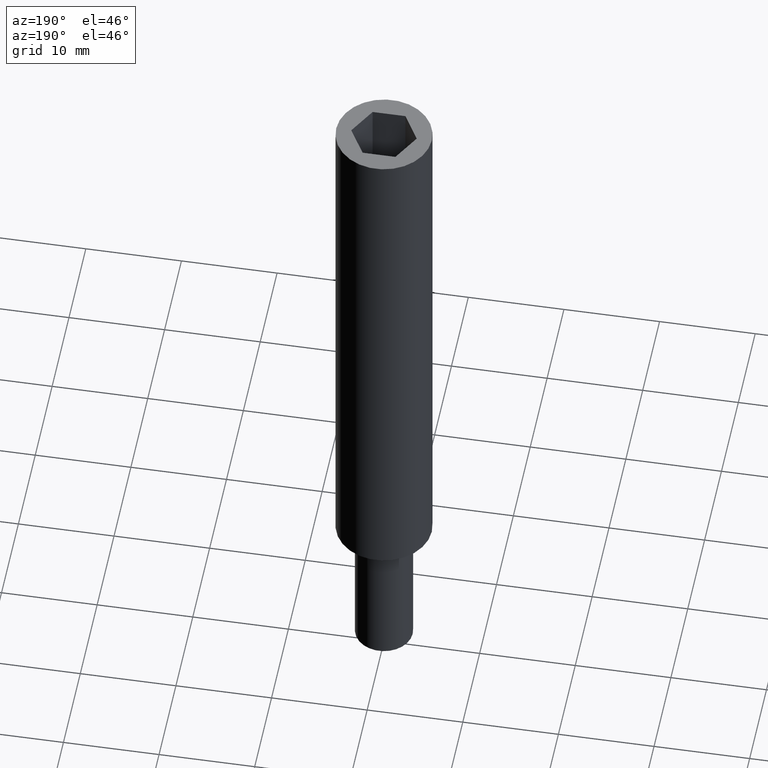
[diagram: clean part render]
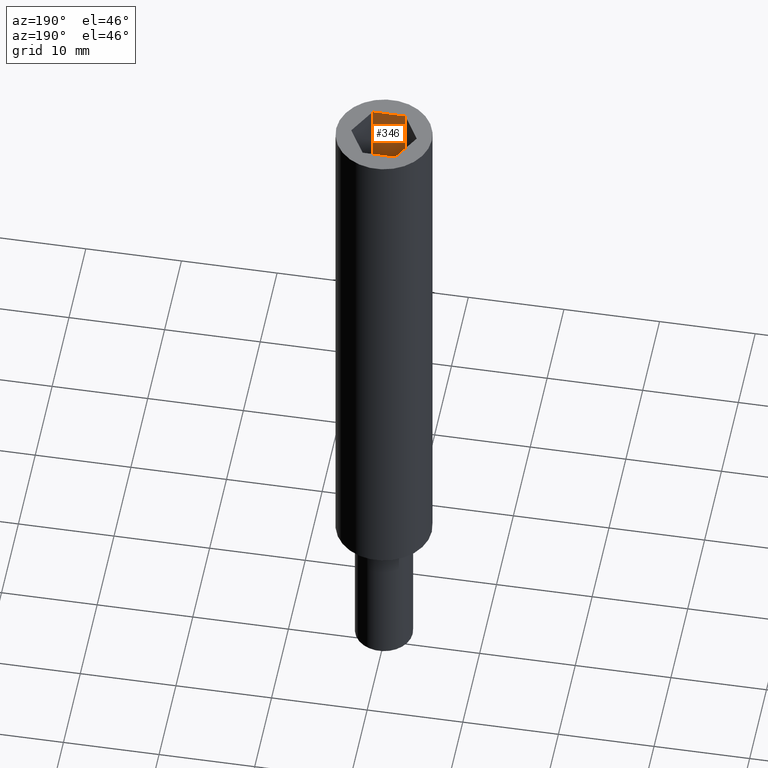
[diagram: same view with one face highlighted and labeled with its STEP entity id]
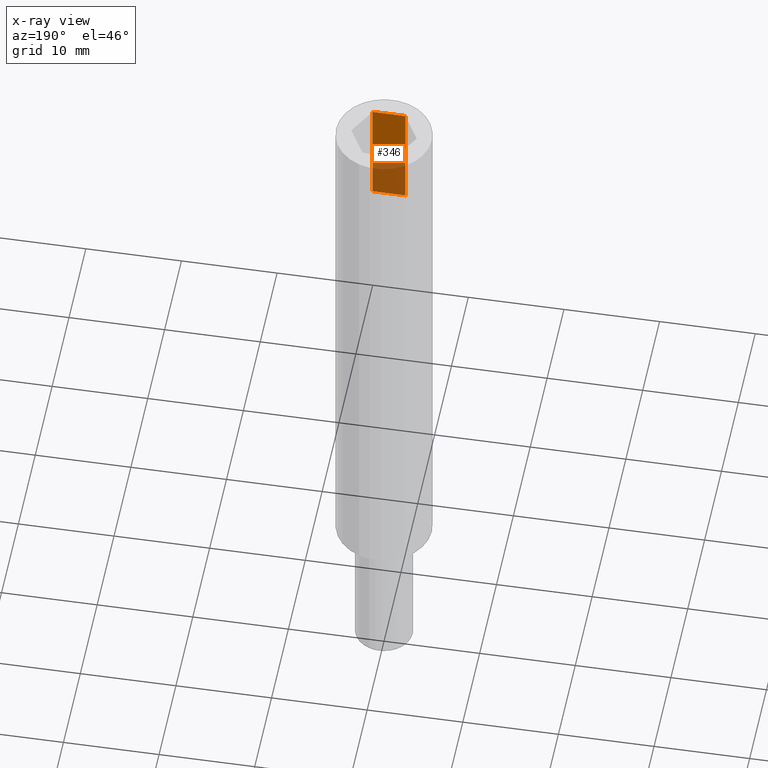
[diagram: x-ray of the same camera — body ghosted, the highlighted face saturated]
A machine part, auxiliary view. The second image highlights one B-rep face of the part: STEP entity #346.
The next image is the same camera in x-ray: the body ghosted, the highlighted face saturated — about 45% of this face is hidden behind the body in this view.
In plain terms, the highlighted planar face has unit normal (0, 1, 0).
Its self-contained STEP definition (entity closure, byte-faithful):
#45=CARTESIAN_POINT('',(1.710586138472991,-2.962822102557819,57.999999999999886));
#46=VERTEX_POINT('',#45);
#53=CARTESIAN_POINT('',(-1.710586138472536,-2.962822102557819,57.999999999999886));
#54=VERTEX_POINT('',#53);
#55=CARTESIAN_POINT('',(-1.710586138472536,-2.962822102557819,57.999999999999886));
#56=DIRECTION('',(1.0,0.0,0.0));
#57=VECTOR('',#56,3.421172276945526);
#58=LINE('',#55,#57);
#59=EDGE_CURVE('',#54,#46,#58,.T.);
#306=CARTESIAN_POINT('',(-1.710586138472536,-2.962822102557820,46.232834030816264));
#307=VERTEX_POINT('',#306);
#308=CARTESIAN_POINT('',(-1.710586138472536,-2.962822102557819,57.999999999999886));
#309=DIRECTION('',(0.0,0.0,-1.0));
#310=VECTOR('',#309,11.767165969183623);
#311=LINE('',#308,#310);
#312=EDGE_CURVE('',#54,#307,#311,.T.);
#323=CARTESIAN_POINT('',(-1.710586138472536,-2.962822102557819,57.999999999999886));
#324=DIRECTION('',(0.0,1.0,0.0));
#325=DIRECTION('',(1.0,0.0,0.0));
#326=AXIS2_PLACEMENT_3D('',#323,#324,#325);
#327=PLANE('',#326);
#328=ORIENTED_EDGE('',*,*,#312,.F.);
#329=ORIENTED_EDGE('',*,*,#59,.T.);
#330=CARTESIAN_POINT('',(1.710586138472991,-2.962822102557820,46.232834030816264));
#331=VERTEX_POINT('',#330);
#332=CARTESIAN_POINT('',(1.710586138472991,-2.962822102557819,57.999999999999886));
#333=DIRECTION('',(0.0,0.0,-1.0));
#334=VECTOR('',#333,11.767165969183623);
#335=LINE('',#332,#334);
#336=EDGE_CURVE('',#46,#331,#335,.T.);
#337=ORIENTED_EDGE('',*,*,#336,.T.);
#338=CARTESIAN_POINT('',(-1.710586138472536,-2.962822102557820,46.232834030816264));
#339=DIRECTION('',(1.0,0.0,0.0));
#340=VECTOR('',#339,3.421172276945526);
#341=LINE('',#338,#340);
#342=EDGE_CURVE('',#307,#331,#341,.T.);
#343=ORIENTED_EDGE('',*,*,#342,.F.);
#344=EDGE_LOOP('',(#328,#329,#337,#343));
#345=FACE_OUTER_BOUND('',#344,.T.);
#346=ADVANCED_FACE('',(#345),#327,.T.);